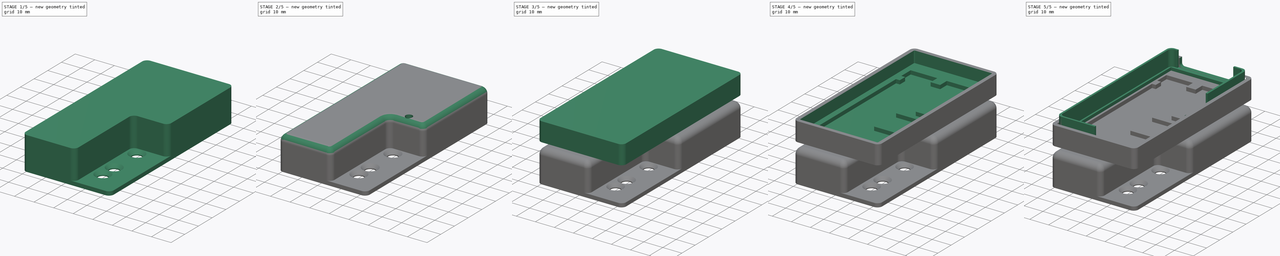
[diagram: build sequence overview — one tinted view per stage of 5, left to right]
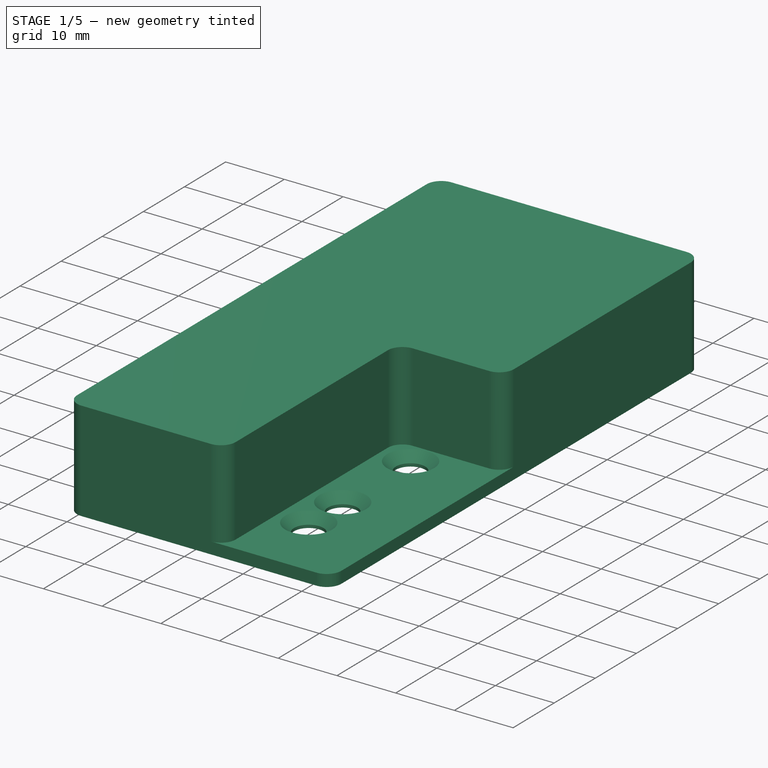
[diagram: stage 1 of 5 — iso view after this stage's code; geometry added in this stage tinted green]
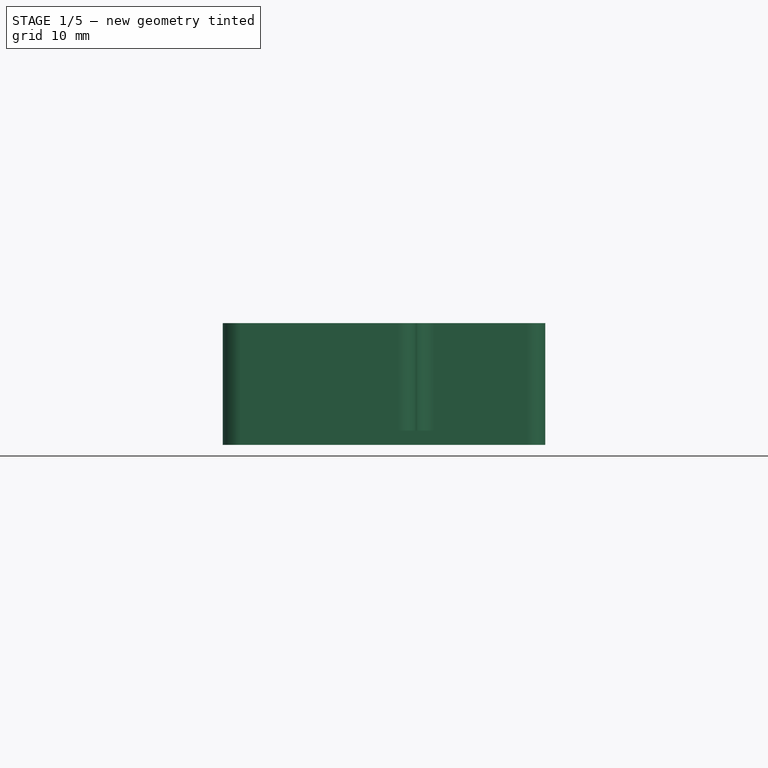
[diagram: stage 1 of 5 — front view after this stage's code; geometry added in this stage tinted green]
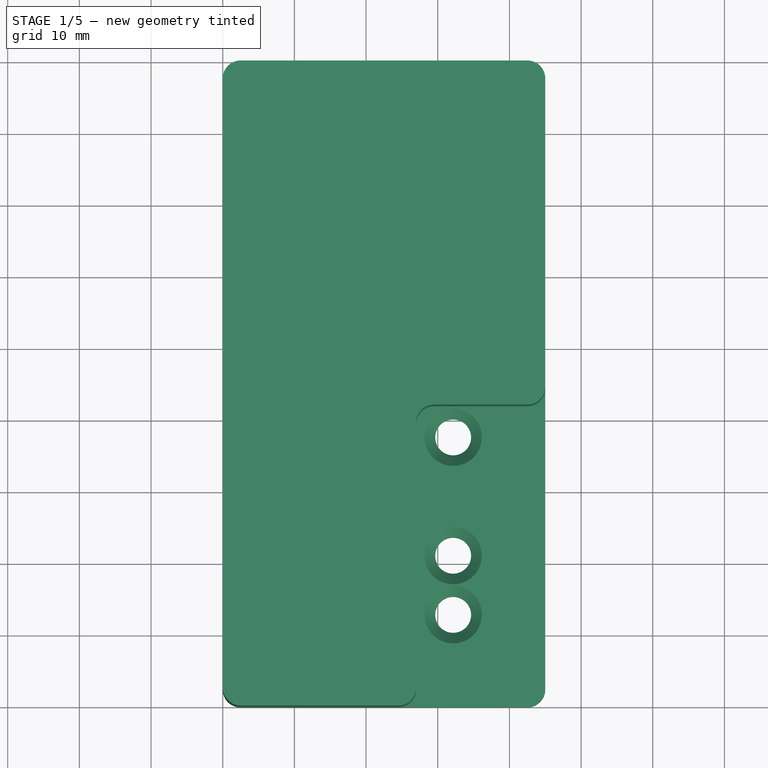
[diagram: stage 1 of 5 — top view after this stage's code; geometry added in this stage tinted green]
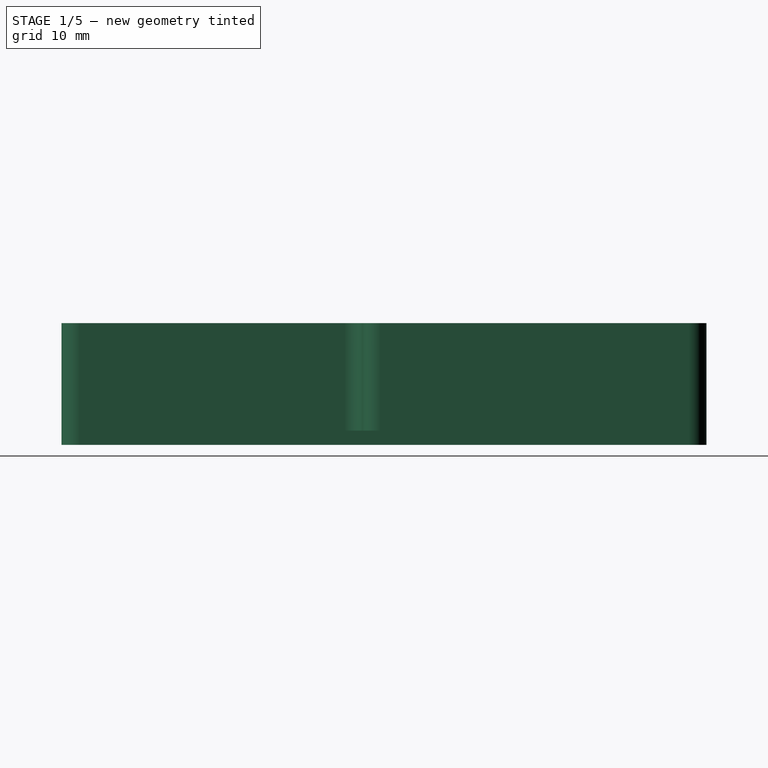
[diagram: stage 1 of 5 — right view after this stage's code; geometry added in this stage tinted green]
FCSTD DOCUMENT  (FreeCAD 0.21R33694 (Git))
Label: HM_AsksinPP_Dimmergehaeuse
License: All rights reserved
LicenseURL: http://en.wikipedia.org/wiki/All_rights_reserved
objects: Part::Feature×16, App::Part×16, Sketcher::SketchObject×12, PartDesign::Pocket×8, PartDesign::Pad×5, PartDesign::SubShapeBinder×2, PartDesign::Chamfer×2, PartDesign::Body×2, PartDesign::Thickness×1, PartDesign::Fillet×1, PartDesign::Hole×1
note: 68 computed .brp shape members not serialized (recipe doc carries the construction recipe); baked Part::Feature solids carry a one-line shape summary decoded from their .brp

FEATURE [PartDesign::SubShapeBinder] Binder  label="Binder_Bodenpad"
  BindCopyOnChange = 0
  BindMode = 2
  ClaimChildren = false
  Context = -> Body001 [Binder.]
  Fuse = false
  MakeFace = true
  OffsetFill = false
  OffsetIntersection = false
  OffsetJoinType = 0
  OffsetOpenResult = false
  PartialLoad = false
  Relative = true
  _Version = 2
FEATURE [PartDesign::Pad] Pad003  label="Pad_Deckel"
  Direction = (0,0,1)
  Length = 17
  Length2 = 10
  Profile = -> Binder
  Type = 0
FEATURE [Sketcher::SketchObject] Sketch006  label="Sk_Tieferlegung_Taster"
  ExternalGeometry = -> [Pad003]
  FullyConstrained = true
  MapMode = 5
  Support = -> [XY_Plane017]
  sketch-geometry (7):
    g0: ArcOfCircle CenterX=29.5 CenterY=39.5 CenterZ=0 NormalX=0 NormalY=0 NormalZ=1 AngleXU=0 Radius=2.5 StartAngle=1.5708 EndAngle=3.14159
    g1: LineSegment StartX=45 StartY=44.5 StartZ=0 EndX=45 EndY=0 EndZ=0
    g2: LineSegment StartX=45 StartY=0 StartZ=0 EndX=24.5 EndY=0 EndZ=0
    g3: LineSegment StartX=29.5 StartY=42 StartZ=0 EndX=42.5 EndY=42 EndZ=0
    g4: ArcOfCircle CenterX=42.5 CenterY=44.5 CenterZ=0 NormalX=0 NormalY=0 NormalZ=1 AngleXU=0 Radius=2.5 StartAngle=4.71239 EndAngle=6.28319
    g5: LineSegment StartX=27 StartY=39.5 StartZ=0 EndX=27 EndY=2.5 EndZ=0
    g6: ArcOfCircle CenterX=24.5 CenterY=2.5 CenterZ=0 NormalX=0 NormalY=0 NormalZ=1 AngleXU=0 Radius=2.5 StartAngle=4.71239 EndAngle=6.28319
  constraints (20):
    c: Horizontal(g2)
    c: Vertical(g1)
    c: Coincident(g1,g2)
    c: PointOnObject(g2,g-1)
    c: Diameter(g0) = 5
    c: Horizontal(g3)
    c: Diameter(g4) = 5
    c: Angle(g4) = 1.5708
    c: PointOnObject(g4,g-3)
    c: DistanceY(g-1,g3) = 42
    c: Coincident(g1,g4)
    c: Tangent(g4,g3) = -1.5708
    c: Vertical(g5)
    c: Angle(g6) = 1.5708
    c: Tangent(g6,g5) = 1.5708
    c: Diameter(g6) = 5
    c: Tangent(g3,g0) = 1.5708
    c: DistanceX(g-1,g5) = 27
    c: Coincident(g6,g2)
    c: Tangent(g5,g0) = -1.5708
FEATURE [PartDesign::Pocket] Pocket003  label="Pocket_Tieferlegung_Taster"
  BaseFeature = -> Pad003
  Direction = (0,0,-1)
  Length = 18
  Length2 = 5
  Profile = -> Sketch006
  ReferenceAxis = -> Sketch006 [N_Axis]
  Type = 0
FEATURE [Sketcher::SketchObject] Sketch007
  FullyConstrained = true
  MapMode = 5
  Support = -> [XY_Plane017]
  sketch-geometry (4):
    g0: Circle CenterX=32.15 CenterY=37.685 CenterZ=0 NormalX=0 NormalY=0 NormalZ=1 AngleXU=0 Radius=2.5
    g1: Circle CenterX=32.15 CenterY=21.175 CenterZ=0 NormalX=0 NormalY=0 NormalZ=1 AngleXU=0 Radius=2.5
    g2: Circle CenterX=32.15 CenterY=12.92 CenterZ=0 NormalX=0 NormalY=0 NormalZ=1 AngleXU=0 Radius=2.5
    g3: LineSegment StartX=32.15 StartY=45 StartZ=0 EndX=32.15 EndY=0 EndZ=0
  constraints (13):
    c: Diameter(g0) = 5
    c: Equal(g0,g1) = 5
    c: Equal(g0,g2) = 5
    c: PointOnObject(g3,g-1)
    c: Vertical(g3)
    c: DistanceY(g3,g3) = 45
    c: PointOnObject(g0,g3)
    c: PointOnObject(g1,g3)
    c: PointOnObject(g2,g3)
    c: DistanceX(g-1,g3) = 32.15
    c: DistanceY(g2,g1) = 8.255
    c: DistanceY(g2,g0) = 24.765
    c: DistanceY(g-1,g2) = 12.92
FEATURE [PartDesign::Pocket] Pocket004  label="Pocket_Tasterloecher"
  BaseFeature = -> Pocket003
  Direction = (0,0,-1)
  Length = 5
  Length2 = 5
  Profile = -> Sketch007
  ReferenceAxis = -> Sketch007 [N_Axis]
  Type = 1
FEATURE [PartDesign::Chamfer] Chamfer  label="Chamfer_TasterSenkungen"
  Angle = 45
  Base = -> Pocket004 [Edge39,Edge40,Edge41]
  BaseFeature = -> Pocket004
  ChamferType = 0
  FlipDirection = false
  Size = 1.5
  Size2 = 1
  SupportTransform = false
  UseAllEdges = false
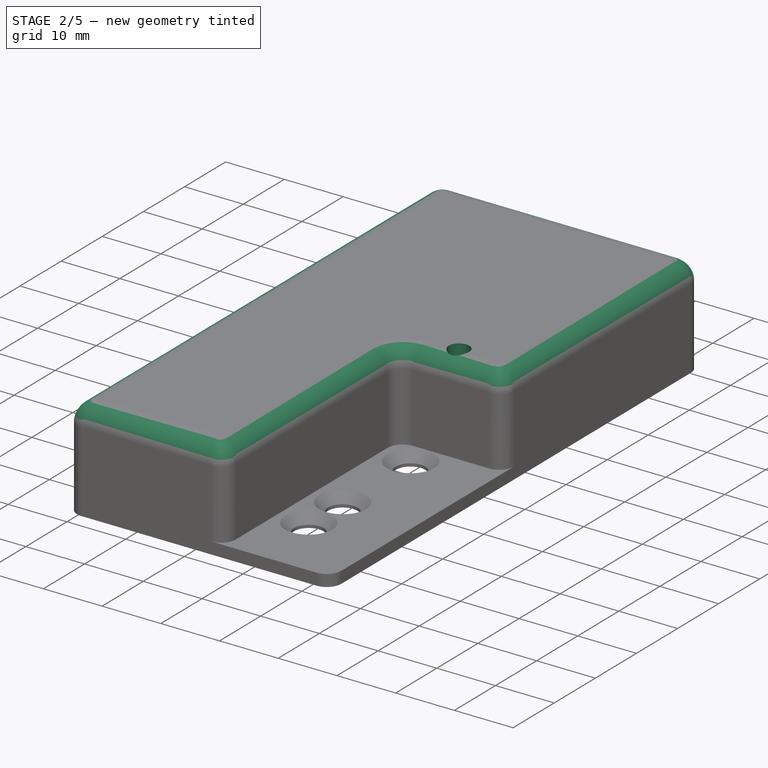
[diagram: stage 2 of 5 — iso view after this stage's code; geometry added in this stage tinted green]
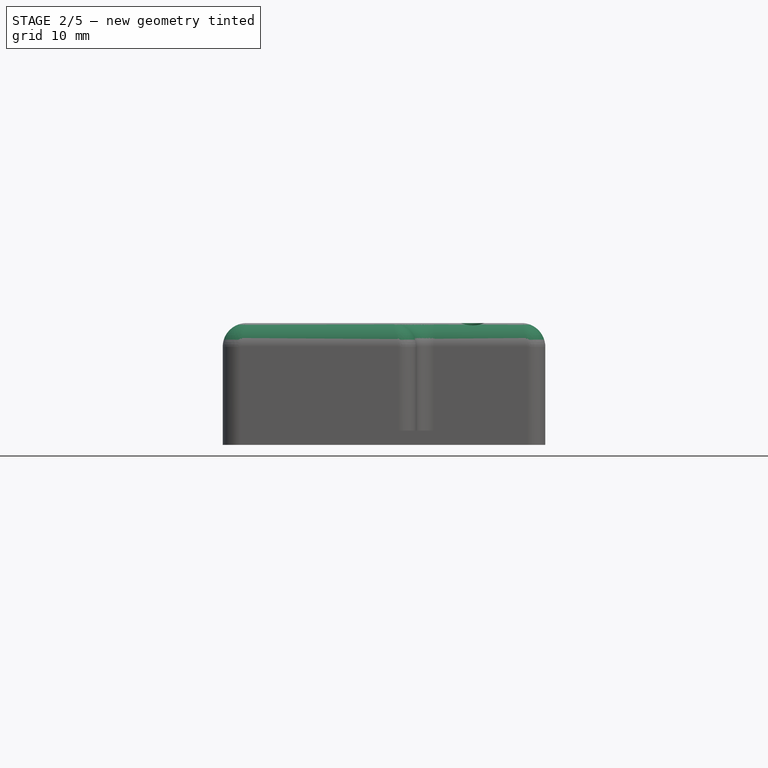
[diagram: stage 2 of 5 — front view after this stage's code; geometry added in this stage tinted green]
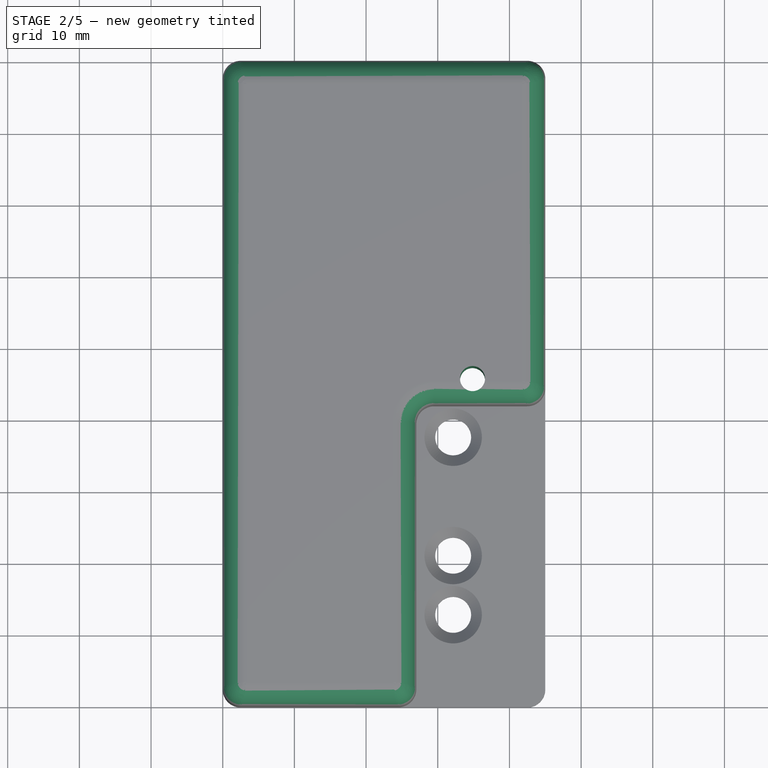
[diagram: stage 2 of 5 — top view after this stage's code; geometry added in this stage tinted green]
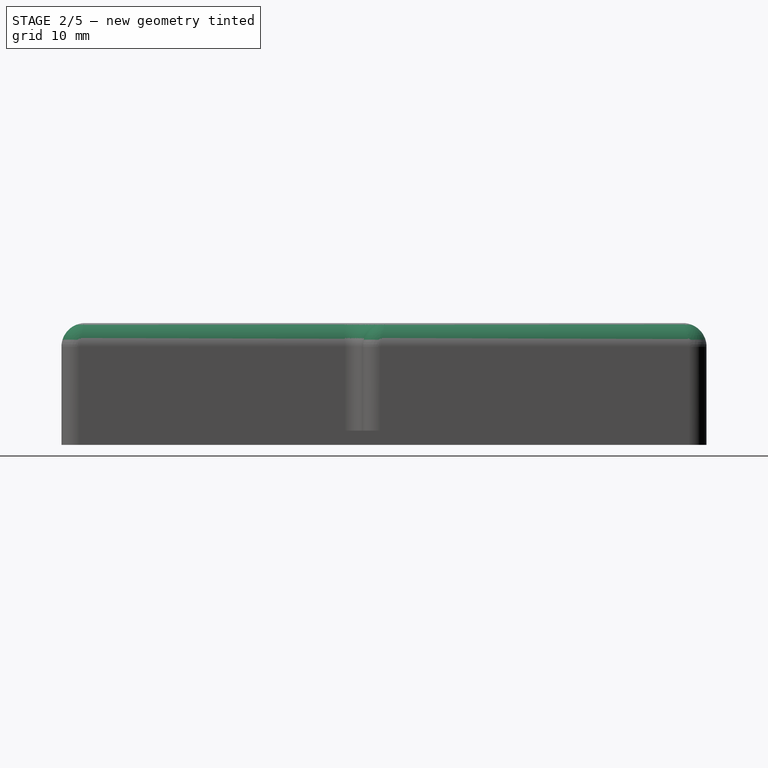
[diagram: stage 2 of 5 — right view after this stage's code; geometry added in this stage tinted green]
FEATURE [Sketcher::SketchObject] Sketch008  label="Sk_Hohlraum"
  AttachmentOffset = pos=(0,0,-5) rot=(0,0,1;0rad)
  FullyConstrained = true
  MapMode = 5
  Placement = pos=(0,0,-5) rot=(0,0,1;0rad)
  Support = -> [XY_Plane017]
  sketch-geometry (18):
    g0: LineSegment StartX=2 StartY=4.5 StartZ=0 EndX=2 EndY=85.5 EndZ=0
    g1: LineSegment StartX=4.5 StartY=88 StartZ=0 EndX=40.5 EndY=88 EndZ=0
    g2: LineSegment StartX=43 StartY=85.5 StartZ=0 EndX=43 EndY=55.8 EndZ=0
    g3: LineSegment StartX=31.1 StartY=43 StartZ=0 EndX=28.5 EndY=43 EndZ=0
    g4: LineSegment StartX=26 StartY=40.5 StartZ=0 EndX=26 EndY=4.5 EndZ=0
    g5: LineSegment StartX=23.5 StartY=2 StartZ=0 EndX=4.5 EndY=2 EndZ=0
    g6: ArcOfCircle CenterX=28.5 CenterY=40.5 CenterZ=0 NormalX=0 NormalY=0 NormalZ=1 AngleXU=0 Radius=2.5 StartAngle=1.5708 EndAngle=3.14159
    g7: GeomPoint X=26 Y=43 Z=0
    g8: ArcOfCircle CenterX=23.5 CenterY=4.5 CenterZ=0 NormalX=0 NormalY=0 NormalZ=1 AngleXU=0 Radius=2.5 StartAngle=4.71239 EndAngle=6.28319
    g9: GeomPoint X=26 Y=2 Z=0
    g10: ArcOfCircle CenterX=4.5 CenterY=4.5 CenterZ=0 NormalX=0 NormalY=0 NormalZ=1 AngleXU=0 Radius=2.5 StartAngle=3.14159 EndAngle=4.71239
    g11: GeomPoint X=2 Y=2 Z=0
    g12: ArcOfCircle CenterX=4.5 CenterY=85.5 CenterZ=0 NormalX=0 NormalY=0 NormalZ=1 AngleXU=0 Radius=2.5 StartAngle=1.5708 EndAngle=3.14159
    g13: GeomPoint X=2 Y=88 Z=0
    g14: ArcOfCircle CenterX=40.5 CenterY=85.5 CenterZ=0 NormalX=0 NormalY=0 NormalZ=1 AngleXU=0 Radius=2.5 StartAngle=-9e-16 EndAngle=1.5708
    g15: GeomPoint X=43 Y=88 Z=0
    g16: LineSegment StartX=43 StartY=55.8 StartZ=0 EndX=31.1 EndY=55.8 EndZ=0
    g17: LineSegment StartX=31.1 StartY=55.8 StartZ=0 EndX=31.1 EndY=43 EndZ=0
  constraints (44):
    c: Vertical(g0)
    c: Horizontal(g1)
    c: Vertical(g2)
    c: Horizontal(g3)
    c: Vertical(g4)
    c: Horizontal(g5)
    c: DistanceX(g-1,g11) = 2
    c: DistanceY(g-1,g11) = 2
    c: DistanceY(g11,g13) = 86
    c: DistanceX(g13,g15) = 41
    c: DistanceX(g11,g9) = 24
    c: DistanceY(g9,g7) = 41
    c: PointOnObject(g7,g3)
    c: PointOnObject(g7,g4)
    c: Tangent(g3,g6) = -1.5708
    c: Tangent(g4,g6) = -1.5708
    c: Diameter(g6) = 5
    c: PointOnObject(g9,g4)
    c: PointOnObject(g9,g5)
    c: Tangent(g4,g8) = 1.5708
    c: Tangent(g5,g8) = 1.5708
    c: Diameter(g8) = 5
    c: PointOnObject(g11,g0)
    c: PointOnObject(g11,g5)
    c: Tangent(g0,g10) = 1.5708
    c: Tangent(g5,g10) = 1.5708
    c: Diameter(g10) = 5
    c: PointOnObject(g13,g0)
    c: PointOnObject(g13,g1)
    c: Tangent(g0,g12) = 1.5708
    c: Tangent(g1,g12) = 1.5708
    c: PointOnObject(g15,g1)
    c: PointOnObject(g15,g2)
    c: Tangent(g1,g14) = 1.5708
    c: Tangent(g2,g14) = 1.5708
    c: Diameter(g12) = 5
    c: Diameter(g14) = 5
    c: Coincident(g2,g16)
    c: Horizontal(g16)
    c: Coincident(g16,g17)
    c: Vertical(g17)
    c: Coincident(g3,g17)
    c: DistanceX(g3,g3) = 2.6
    c: DistanceY(g17,g17) = 12.8
FEATURE [PartDesign::Pocket] Pocket005  label="Pocket_Hohlraum"
  BaseFeature = -> Chamfer
  Direction = (0,0,-1)
  Length = 5
  Length2 = 5
  Profile = -> Sketch008
  ReferenceAxis = -> Sketch008 [N_Axis]
  Type = 1
FEATURE [Sketcher::SketchObject] Sketch009
  FullyConstrained = true
  MapMode = 5
  Support = -> [XY_Plane017]
  sketch-geometry (1):
    g0: Circle CenterX=34.85 CenterY=45.61 CenterZ=0 NormalX=0 NormalY=0 NormalZ=1 AngleXU=0 Radius=1.75
  constraints (3):
    c: Diameter(g0) = 3.5
    c: DistanceX(g-1,g0) = 34.85
    c: DistanceY(g-1,g0) = 45.61
FEATURE [PartDesign::Fillet] Fillet  label="Fillet_DeckelOberseite"
  Base = -> Pocket005 [Face14]
  BaseFeature = -> Pocket005
  Radius = 3.3
  SupportTransform = false
  UseAllEdges = false
FEATURE [PartDesign::Pocket] Pocket006  label="Pocket_LED"
  BaseFeature = -> Fillet
  Direction = (0,0,-1)
  Length = 5
  Length2 = 5
  Profile = -> Sketch009
  ReferenceAxis = -> Sketch009 [N_Axis]
  Type = 1
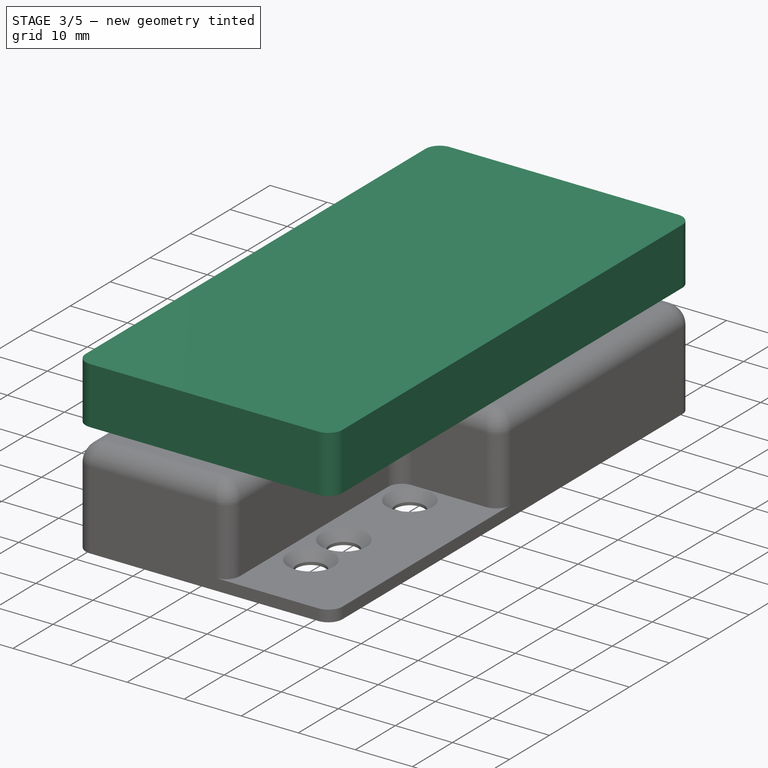
[diagram: stage 3 of 5 — iso view after this stage's code; geometry added in this stage tinted green]
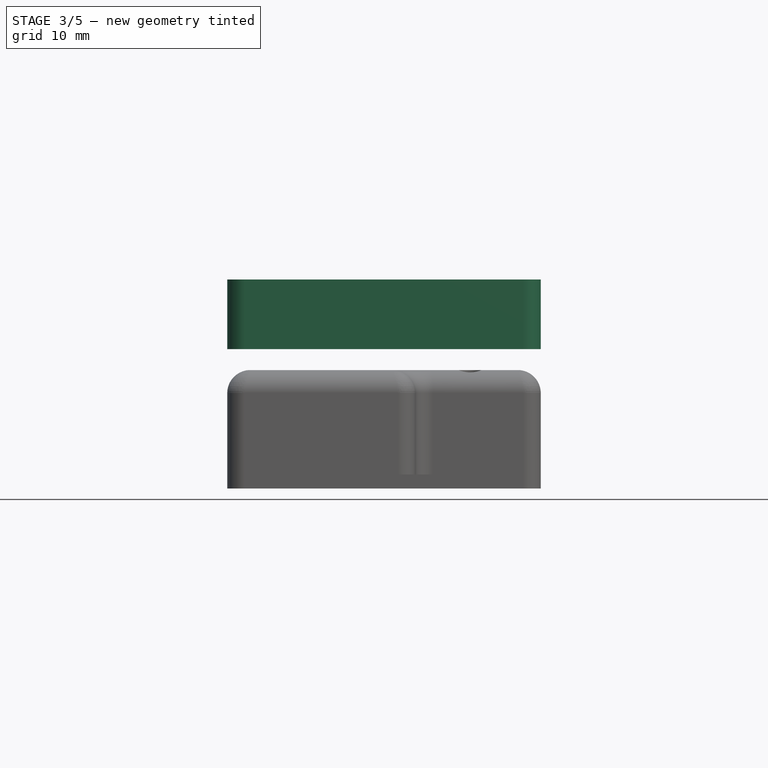
[diagram: stage 3 of 5 — front view after this stage's code; geometry added in this stage tinted green]
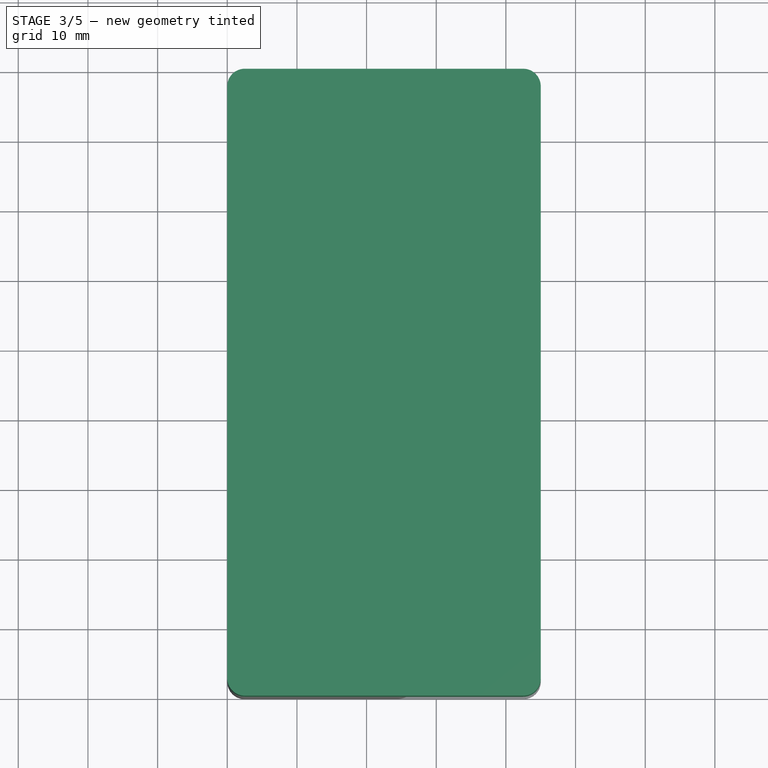
[diagram: stage 3 of 5 — top view after this stage's code; geometry added in this stage tinted green]
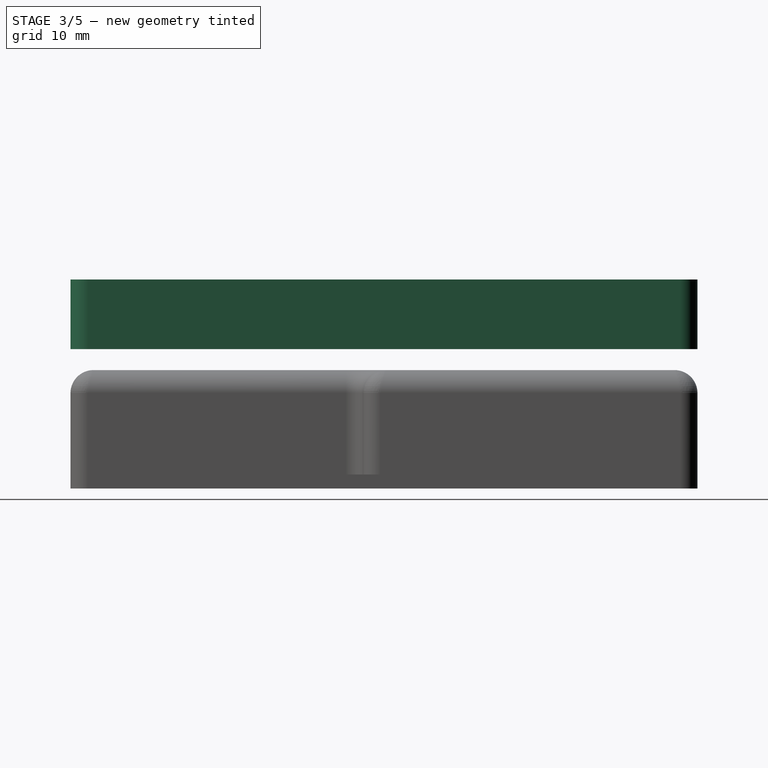
[diagram: stage 3 of 5 — right view after this stage's code; geometry added in this stage tinted green]
FEATURE [Part::Feature] Part__Feature  label="SOLID"
  shape: bbox 7.174 x 6 x 8.5 mm, 105 faces (baked)
FEATURE [App::Part] SW_PUSH_6mm_H5mm
  Group = -> [Part__Feature]
  Origin = -> Origin
  Placement = pos=(24.98,10.44,1.65) rot=(0,0,1;0rad)
FEATURE [Part::Feature] Part__Feature001  label="SOLID001"
  shape: bbox 4.6 x 3 x 8.9 mm, 22 faces (baked)
FEATURE [App::Part] C_Rect_L4_6mm_W3_0mm_P2_50mm_MKS02_FKP02  label="C_Rect_L4.6mm_W3.0mm_P2.50mm_MKS02_FKP02"
  Group = -> [Part__Feature001]
  Origin = -> Origin001
  Placement = pos=(18.145,58.01,1.65) rot=(0,0,1;1.5708rad)
FEATURE [Part::Feature] Part__Feature002  label="SOLID002"
  shape: bbox 6 x 4.9 x 1.75 mm, 156 faces (baked)
FEATURE [App::Part] SOIC_8_3_9x4_9mm_P1_27mm  label="SOIC-8_3.9x4.9mm_P1.27mm"
  Group = -> [Part__Feature002]
  Origin = -> Origin002
  Placement = pos=(27.835,54.755,1.65) rot=(0,0,1;0rad)
FEATURE [Part::Feature] Part__Feature003  label="COMPOUND"
  shape: bbox 10.56 x 10 x 18.25 mm, 233 faces (baked)
FEATURE [App::Part] _er_Terminal_Block  label="2er Terminal Block"
  Group = -> [Part__Feature003]
  Origin = -> Origin003
  Placement = pos=(23.305,72.615,1.65) rot=(0,0,1;0rad)
FEATURE [Part::Feature] Part__Feature004  label="SOLID003"
  shape: bbox 3.4 x 3.8 x 10.8 mm, 16 faces (baked)
FEATURE [App::Part] LED_D3_0mm  label="LED_D3.0mm"
  Group = -> [Part__Feature004]
  Origin = -> Origin004
  Placement = pos=(30.845,39.595,1.65) rot=(0,0,1;1.5708rad)
FEATURE [Part::Feature] Part__Feature005  label="SOLID004"
  shape: bbox 6.015 x 6.588 x 11.6 mm, 63 faces (baked)
FEATURE [App::Part] CP_Radial_Tantal_D6_0mm_P2_50mm  label="CP_Radial_Tantal_D6.0mm_P2.50mm"
  Group = -> [Part__Feature005]
  Origin = -> Origin005
  Placement = pos=(4.215,59.28,1.65) rot=(0,0,1;0rad)
FEATURE [Part::Feature] Part__Feature006  label="SOLID005"
  shape: bbox 7.174 x 6 x 8.5 mm, 105 faces (baked)
FEATURE [App::Part] SW_PUSH_6mm_H5mm001
  Group = -> [Part__Feature006]
  Origin = -> Origin006
  Placement = pos=(24.98,18.695,1.65) rot=(0,0,1;0rad)
FEATURE [Part::Feature] Part__Feature007  label="COMPOUND001"
  shape: bbox 10.56 x 10 x 18.25 mm, 233 faces (baked)
FEATURE [App::Part] _er_Terminal_Block001  label="2er Terminal Block001"
  Group = -> [Part__Feature007]
  Origin = -> Origin007
  Placement = pos=(6.795,72.615,1.65) rot=(0,0,1;0rad)
FEATURE [Part::Feature] Part__Feature008  label="SOLID006"
  shape: bbox 7.174 x 6 x 8.5 mm, 105 faces (baked)
FEATURE [App::Part] SW_PUSH_6mm_H5mm002
  Group = -> [Part__Feature008]
  Origin = -> Origin008
  Placement = pos=(24.98,35.205,1.65) rot=(0,0,1;0rad)
FEATURE [Part::Feature] Part__Feature009  label="SOLID007"
  shape: bbox 3 x 2 x 5.1 mm, 12 faces (baked)
FEATURE [App::Part] C_Disc_D3_0mm_W2_0mm_P2_50mm  label="C_Disc_D3.0mm_W2.0mm_P2.50mm"
  Group = -> [Part__Feature009]
  Origin = -> Origin009
  Placement = pos=(33.425,56.065,1.65) rot=(0,0,-1;1.5708rad)
FEATURE [Part::Feature] Part__Feature010  label="SOLID008"
  shape: bbox 4.83 x 3.745 x 9.8 mm, 19 faces (baked)
FEATURE [App::Part] TO_92_Inline  label="TO-92_Inline"
  Group = -> [Part__Feature010]
  Origin = -> Origin010
  Placement = pos=(12.43,58.01,1.65) rot=(0,0,1;1.5708rad)
FEATURE [Part::Feature] Part__Feature011  label="SOLID009"
  shape: bbox 4.292 x 2.706 x 12.6 mm, 17 faces (baked)
FEATURE [App::Part] R_Axial_DIN0207_L6_3mm_D2_5mm_P2_54mm_Vertical  label="R_Axial_DIN0207_L6.3mm_D2.5mm_P2.54mm_Vertical"
  Group = -> [Part__Feature011]
  Origin = -> Origin011
  Placement = pos=(25.13,40.23,1.65) rot=(0,0,1;1.5708rad)
FEATURE [Part::Feature] Part__Feature012  label="SOLID010"
  shape: bbox 10.25 x 4.455 x 28.53 mm, 48 faces (baked)
FEATURE [App::Part] TO_220_3_Vertical  label="TO-220-3_Vertical"
  Group = -> [Part__Feature012]
  Origin = -> Origin012
  Placement = pos=(30.21,61.82,1.65) rot=(0,0,1;3.14159rad)
FEATURE [Part::Feature] Part__Feature013  label="SOLID011"
  shape: bbox 9.25 x 6.5 x 3.2 mm, 154 faces (baked)
FEATURE [App::Part] Molex_530470610
  Group = -> [Part__Feature013]
  Origin = -> Origin013
  Placement = pos=(28.34,23.84,6.85) rot=(-1,0,0;1.5708rad)
FEATURE [Part::Feature] Part__Feature014  label="SOLID012"
  shape: bbox 3 x 2 x 5.1 mm, 12 faces (baked)
FEATURE [App::Part] C_Disc_D3_0mm_W2_0mm_P2_50mm001  label="C_Disc_D3.0mm_W2.0mm_P2.50mm001"
  Group = -> [Part__Feature014]
  Origin = -> Origin014
  Placement = pos=(22.59,56.065,1.65) rot=(0,0,-1;1.5708rad)
FEATURE [Part::Feature] Part__Feature015  label="Homematic_AsksinPP_PWM_Dimmer PCB"
  shape: bbox 37 x 80 x 1.6 mm, 87 faces (baked)
FEATURE [App::Part] Homematic_AsksinPP_PWM_Dimmer_1  label="Homematic_AsksinPP_PWM_Dimmer 1"
  Group = -> [SW_PUSH_6mm_H5mm,C_Rect_L4_6mm_W3_0mm_P2_50mm_MKS02_FKP02,SOIC_8_3_9x4_9mm_P1_27mm,_er_Terminal_Block,LED_D3_0mm,CP_Radial_Tantal_D6_0mm_P2_50mm,SW_PUSH_6mm_H5mm001,_er_Terminal_Block001,SW_PUSH_6mm_H5mm002,C_Disc_D3_0mm_W2_0mm_P2_50mm,TO_92_Inline,R_Axial_DIN0207_L6_3mm_D2_5mm_P2_54mm_Vertical,TO_220_3_Vertical,Molex_530470610,C_Disc_D3_0mm_W2_0mm_P2_50mm001,Part__Feature015]
  Origin = -> Origin015
  Placement = pos=(4,4.75,4) rot=(0,0,1;0rad)
FEATURE [Sketcher::SketchObject] Sketch  label="Sk_Bodenplatte"
  FullyConstrained = true
  MapMode = 5
  Support = -> [XY_Plane016]
  sketch-geometry (10):
    g0: ArcOfCircle CenterX=2.5 CenterY=2.5 CenterZ=0 NormalX=0 NormalY=0 NormalZ=1 AngleXU=0 Radius=2.5 StartAngle=3.14159 EndAngle=4.71239
    g1: LineSegment StartX=1.4504e-11 StartY=2.5 StartZ=0 EndX=1.4504e-11 EndY=87.5 EndZ=0
    g2: ArcOfCircle CenterX=2.5 CenterY=87.5 CenterZ=0 NormalX=0 NormalY=0 NormalZ=1 AngleXU=0 Radius=2.5 StartAngle=1.5708 EndAngle=3.14159
    g3: LineSegment StartX=2.5 StartY=90 StartZ=0 EndX=42.5 EndY=90 EndZ=0
    g4: ArcOfCircle CenterX=42.5 CenterY=87.5 CenterZ=0 NormalX=0 NormalY=0 NormalZ=1 AngleXU=0 Radius=2.5 StartAngle=7.5357e-12 EndAngle=1.5708
    g5: LineSegment StartX=45 StartY=87.5 StartZ=0 EndX=45 EndY=2.5 EndZ=0
    g6: ArcOfCircle CenterX=42.5 CenterY=2.5 CenterZ=0 NormalX=0 NormalY=0 NormalZ=1 AngleXU=0 Radius=2.5 StartAngle=4.71239 EndAngle=6.28319
    g7: LineSegment StartX=42.5 StartY=6.7e-15 StartZ=0 EndX=2.5 EndY=6.7e-15 EndZ=0
    g8: GeomPoint X=0 Y=0 Z=0
    g9: GeomPoint X=45 Y=90 Z=0
  constraints (23):
    c: Tangent(g0,g1) = 1.5708
    c: Tangent(g1,g2) = 1.5708
    c: Tangent(g2,g3) = 1.5708
    c: Tangent(g3,g4) = 1.5708
    c: Tangent(g4,g5) = 1.5708
    c: Tangent(g5,g6) = 1.5708
    c: Tangent(g6,g7) = 1.5708
    c: Tangent(g7,g0) = 1.5708
    c: Horizontal(g3)
    c: Horizontal(g7)
    c: Vertical(g1)
    c: Vertical(g5)
    c: Equal(g0,g2)
    c: Equal(g2,g4)
    c: Equal(g4,g6)
    c: PointOnObject(g8,g1)
    c: PointOnObject(g8,g7)
    c: PointOnObject(g9,g3)
    c: PointOnObject(g9,g5)
    c: Coincident(g8,g-1)
    c: Diameter(g2) = 5
    c: DistanceX(g1,g4) = 45
    c: DistanceY(g6,g3) = 90
FEATURE [PartDesign::Pad] Pad  label="Pad_Bodenplatte"
  Direction = (0,0,1)
  Length = 10
  Length2 = 10
  Profile = -> Sketch
  ReferenceAxis = -> Sketch [N_Axis]
  Type = 0
FEATURE [PartDesign::Body] Body  label="Boden"
  Group = -> [Sketch,Pad,Thickness,Sketch001,Pad001,Sketch003,Pocket,Sketch002,Pocket001,Sketch004,Pocket002,Sketch005,Pad002,Sketch010,Pad004]
  Origin = -> Origin016
  Tip = -> Pocket002
FEATURE [PartDesign::Hole] Hole  label="Hole_M3_Zylinderkopf"
  BaseFeature = -> Pocket006
  CustomThreadClearance = 0
  Depth = 208.06
  DepthType = 1
  Diameter = 3.2
  DrillForDepth = false
  DrillPoint = 1
  DrillPointAngle = 118
  HoleCutCountersinkAngle = 90
  HoleCutCustomValues = false
  HoleCutDepth = 7.2
  HoleCutDiameter = 5.6
  HoleCutType = 1
  ModelThread = false
  Profile = -> Binder001
  Tapered = false
  TaperedAngle = 90
  ThreadClass = 0
  ThreadDepth = 208.06
  ThreadDepthType = 0
  ThreadDirection = 0
  ThreadFit = 0
  ThreadSize = 0
  ThreadType = 0
  Threaded = false
  UseCustomThreadClearance = false
FEATURE [Sketcher::SketchObject] Sketch011
  AttachmentOffset = pos=(0,0,-19) rot=(0,0,1;0rad)
  FullyConstrained = true
  MapMode = 5
  Placement = pos=(0,0,-19) rot=(0,0,1;0rad)
  Support = -> [XY_Plane017]
  sketch-geometry (4):
    g0: LineSegment StartX=25 StartY=32.5 StartZ=0 EndX=39 EndY=32.5 EndZ=0
    g1: LineSegment StartX=39 StartY=32.5 StartZ=0 EndX=39 EndY=27.5 EndZ=0
    g2: LineSegment StartX=39 StartY=27.5 StartZ=0 EndX=25 EndY=27.5 EndZ=0
    g3: LineSegment StartX=25 StartY=27.5 StartZ=0 EndX=25 EndY=32.5 EndZ=0
  constraints (12):
    c: Coincident(g0,g1)
    c: Coincident(g1,g2)
    c: Coincident(g2,g3)
    c: Coincident(g3,g0)
    c: Horizontal(g0)
    c: Horizontal(g2)
    c: Vertical(g1)
    c: Vertical(g3)
    c: DistanceY(g1,g1) = 5
    c: DistanceX(g0,g0) = 14
    c: DistanceX(g-1,g2) = 25
    c: DistanceY(g-1,g2) = 27.5
FEATURE [PartDesign::Pocket] Pocket007  label="Pocket_ISP"
  BaseFeature = -> Hole
  Direction = (0,0,-1)
  Length = 5
  Length2 = 5
  Profile = -> Sketch011
  ReferenceAxis = -> Sketch011 [N_Axis]
  Type = 2
FEATURE [PartDesign::Chamfer] Chamfer001  label="Chamfer_LEDunten"
  Angle = 45
  Base = -> Pocket007 [Edge40]
  BaseFeature = -> Pocket007
  ChamferType = 1
  FlipDirection = false
  Size = 2
  Size2 = 1
  SupportTransform = false
  UseAllEdges = false
FEATURE [PartDesign::Body] Body001  label="Deckel"
  Group = -> [Binder,Pad003,Sketch006,Pocket003,Sketch007,Pocket004,Chamfer,Sketch008,Pocket005,Sketch009,Fillet,Pocket006,Binder001,Hole,Sketch011,Pocket007,Chamfer001]
  Origin = -> Origin017
  Placement = pos=(0,0,30) rot=(0,0,1;0rad)
  Tip = -> Chamfer001
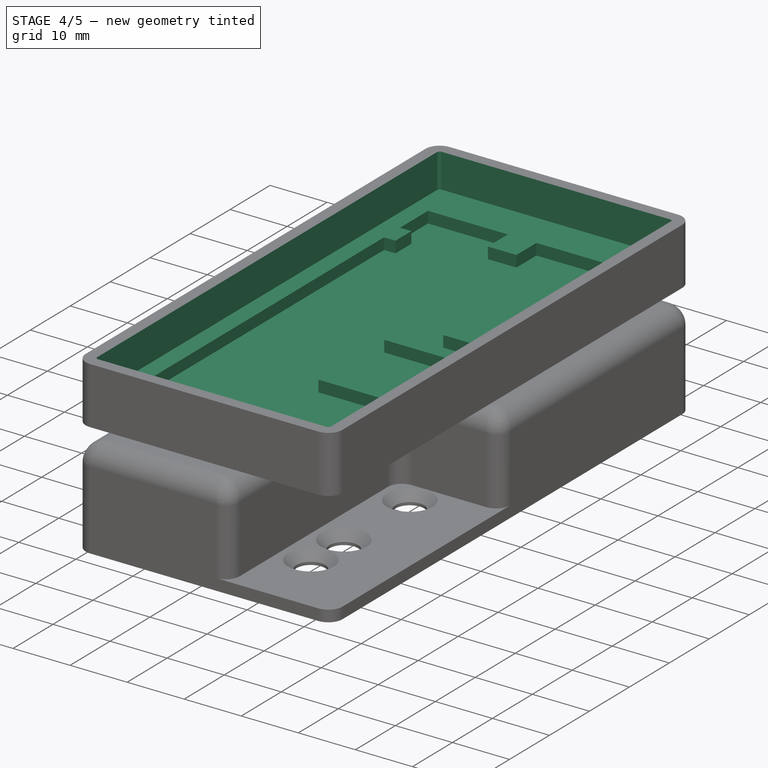
[diagram: stage 4 of 5 — iso view after this stage's code; geometry added in this stage tinted green]
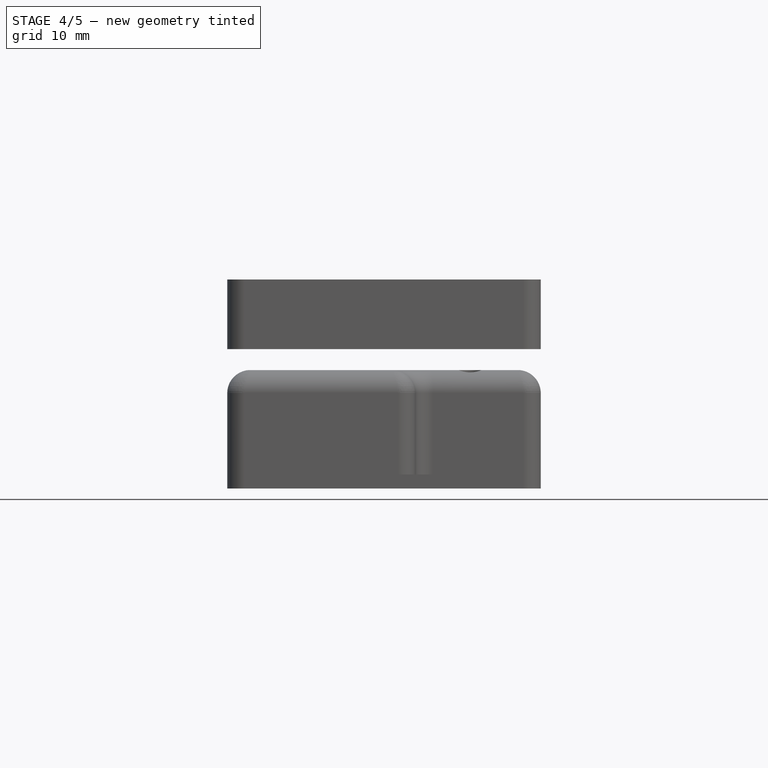
[diagram: stage 4 of 5 — front view after this stage's code; geometry added in this stage tinted green]
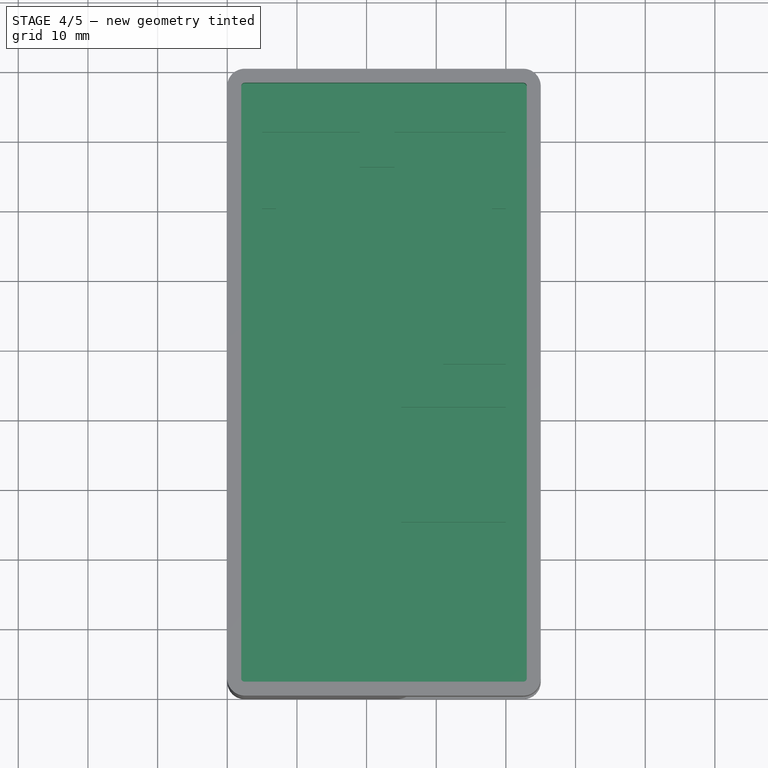
[diagram: stage 4 of 5 — top view after this stage's code; geometry added in this stage tinted green]
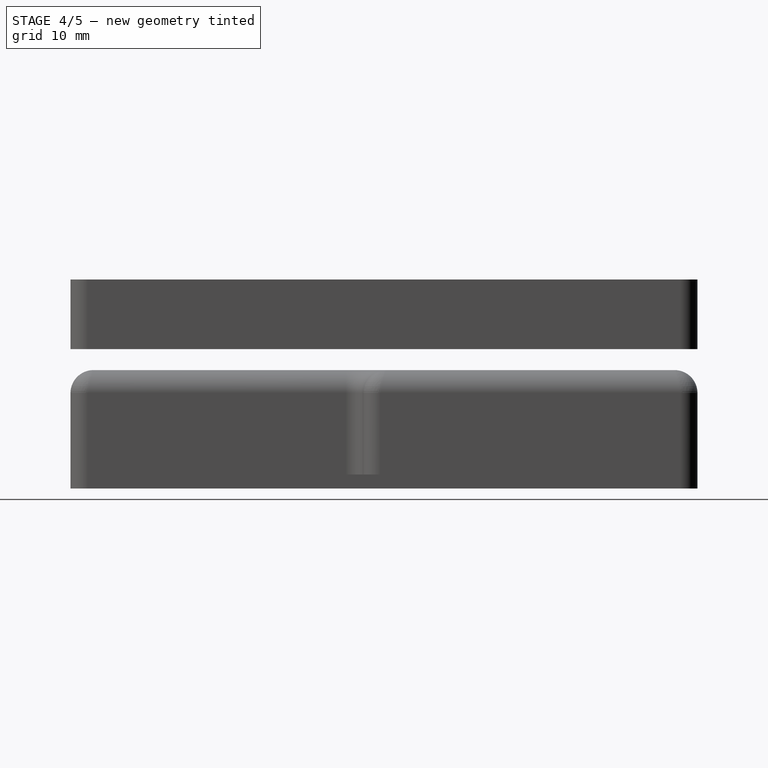
[diagram: stage 4 of 5 — right view after this stage's code; geometry added in this stage tinted green]
FEATURE [PartDesign::Thickness] Thickness  label="Aushöhlung_Thickness_Bodenplatte"
  Base = -> Pad [Face10]
  BaseFeature = -> Pad
  Intersection = false
  Join = 0
  Mode = 1
  Reversed = true
  SupportTransform = false
  Value = 2
FEATURE [Sketcher::SketchObject] Sketch001  label="Sk_PCB_Auflage"
  AttachmentOffset = pos=(0,0,2) rot=(0,0,1;0rad)
  FullyConstrained = true
  MapMode = 5
  Placement = pos=(0,0,2) rot=(0,0,1;0rad)
  Support = -> [XY_Plane016]
  sketch-geometry (36):
    g0: LineSegment StartX=2 StartY=2 StartZ=0 EndX=2 EndY=88 EndZ=0
    g1: LineSegment StartX=2 StartY=88 StartZ=0 EndX=43 EndY=88 EndZ=0
    g2: LineSegment StartX=43 StartY=88 StartZ=0 EndX=43 EndY=2 EndZ=0
    g3: LineSegment StartX=43 StartY=2 StartZ=0 EndX=2 EndY=2 EndZ=0
    g4: LineSegment StartX=5 StartY=6 StartZ=0 EndX=5 EndY=70 EndZ=0
    g5: LineSegment StartX=5 StartY=70 StartZ=0 EndX=7 EndY=70 EndZ=0
    g6: LineSegment StartX=7 StartY=70 StartZ=0 EndX=7 EndY=74 EndZ=0
    g7: LineSegment StartX=7 StartY=74 StartZ=0 EndX=5 EndY=74 EndZ=0
    g8: LineSegment StartX=5 StartY=74 StartZ=0 EndX=5 EndY=81 EndZ=0
    g9: LineSegment StartX=5 StartY=81 StartZ=0 EndX=19 EndY=81 EndZ=0
    g10: LineSegment StartX=19 StartY=81 StartZ=0 EndX=19 EndY=76 EndZ=0
    g11: LineSegment StartX=19 StartY=76 StartZ=0 EndX=24 EndY=76 EndZ=0
    g12: LineSegment StartX=24 StartY=76 StartZ=0 EndX=24 EndY=81 EndZ=0
    g13: LineSegment StartX=24 StartY=81 StartZ=0 EndX=40 EndY=81 EndZ=0
    g14: LineSegment StartX=40 StartY=43.5 StartZ=0 EndX=25 EndY=43.5 EndZ=0
    g15: LineSegment StartX=25 StartY=43.5 StartZ=0 EndX=25 EndY=41.5 EndZ=0
    g16: LineSegment StartX=25 StartY=41.5 StartZ=0 EndX=40 EndY=41.5 EndZ=0
    g17: LineSegment StartX=40 StartY=41.5 StartZ=0 EndX=40 EndY=28 EndZ=0
    g18: LineSegment StartX=40 StartY=28 StartZ=0 EndX=25 EndY=28 EndZ=0
    g19: LineSegment StartX=25 StartY=28 StartZ=0 EndX=25 EndY=25 EndZ=0
    g20: LineSegment StartX=25 StartY=25 StartZ=0 EndX=40 EndY=25 EndZ=0
    g21: LineSegment StartX=40 StartY=25 StartZ=0 EndX=40 EndY=6 EndZ=0
    g22: LineSegment StartX=40 StartY=6 StartZ=0 EndX=5 EndY=6 EndZ=0
    g23: LineSegment StartX=40 StartY=81 StartZ=0 EndX=40 EndY=74 EndZ=0
    g24: LineSegment StartX=40 StartY=74 StartZ=0 EndX=38 EndY=74 EndZ=0
    g25: LineSegment StartX=38 StartY=74 StartZ=0 EndX=38 EndY=70 EndZ=0
    g26: LineSegment StartX=38 StartY=70 StartZ=0 EndX=40 EndY=70 EndZ=0
    g27: LineSegment StartX=5 StartY=81 StartZ=0 EndX=40 EndY=81 EndZ=0
    g28: LineSegment StartX=40 StartY=81 StartZ=0 EndX=40 EndY=6 EndZ=0
    g29: LineSegment StartX=40 StartY=6 StartZ=0 EndX=5 EndY=6 EndZ=0
    g30: LineSegment StartX=5 StartY=6 StartZ=0 EndX=5 EndY=81 EndZ=0
    g31: LineSegment StartX=40 StartY=47.7 StartZ=0 EndX=40 EndY=43.5 EndZ=0
    g32: LineSegment StartX=40 StartY=70 StartZ=0 EndX=40 EndY=56.7 EndZ=0
    g33: LineSegment StartX=40 StartY=56.7 StartZ=0 EndX=31 EndY=56.7 EndZ=0
    g34: LineSegment StartX=31 StartY=56.7 StartZ=0 EndX=31 EndY=47.7 EndZ=0
    g35: LineSegment StartX=31 StartY=47.7 StartZ=0 EndX=40 EndY=47.7 EndZ=0
  constraints (104):
    c: Vertical(g0)
    c: Coincident(g0,g1)
    c: Horizontal(g1)
    c: Coincident(g1,g2)
    c: Vertical(g2)
    c: Coincident(g2,g3)
    c: Coincident(g3,g0)
    c: Horizontal(g3)
    c: DistanceX(g1,g1) = 41
    c: DistanceY(g2,g2) = 86
    c: DistanceY(g-1,g0) = 2
    c: DistanceX(g-1,g0) = 2
    c: Vertical(g4)
    c: Coincident(g4,g5)
    c: Horizontal(g5)
    c: Coincident(g5,g6)
    c: Coincident(g6,g7)
    c: Horizontal(g7)
    c: Coincident(g7,g8)
    c: Coincident(g8,g9)
    c: Vertical(g10)
    c: Coincident(g10,g11)
    c: Coincident(g11,g12)
    c: Coincident(g12,g13)
    c: Horizontal(g13)
    c: Coincident(g13,g23)
    c: Coincident(g31,g14)
    c: Horizontal(g14)
    c: Coincident(g14,g15)
    c: Coincident(g15,g16)
    c: Horizontal(g16)
    c: Coincident(g16,g17)
    c: Vertical(g17)
    c: Coincident(g17,g18)
    c: Horizontal(g18)
    c: Coincident(g18,g19)
    c: Coincident(g19,g20)
    c: Coincident(g20,g21)
    c: Vertical(g21)
    c: Coincident(g21,g22)
    c: Coincident(g22,g4)
    c: Horizontal(g22)
    c: Coincident(g9,g10)
    c: Horizontal(g11)
    c: Vertical(g15)
    c: Vertical(g12)
    c: Vertical(g6)
    c: Vertical(g8)
    c: Coincident(g23,g24)
    c: Vertical(g23)
    c: Coincident(g26,g32)
    c: Coincident(g24,g25)
    c: Coincident(g25,g26)
    c: Vertical(g25)
    c: Horizontal(g24)
    c: Horizontal(g26)
    c: Horizontal(g9)
    c: Vertical(g19)
    c: Coincident(g27,g28)
    c: Coincident(g28,g29)
    c: Coincident(g29,g30)
    c: Coincident(g30,g27)
    c: Horizontal(g27)
    c: Vertical(g28)
    c: Vertical(g30)
    c: Coincident(g27,g8)
    c: Coincident(g28,g21)
    c: DistanceX(g0,g29) = 3
    c: DistanceY(g0,g29) = 4
    c: DistanceX(g29,g29) = 35
    c: Coincident(g4,g29)
    c: PointOnObject(g17,g28)
    c: PointOnObject(g14,g28)
    c: Coincident(g13,g27)
    c: DistanceY(g30,g30) = 75
    c: DistanceX(g5,g5) = 2
    c: DistanceX(g26,g26) = 2
    c: DistanceX(g9,g9) = 14
    c: DistanceX(g13,g13) = 16
    c: DistanceY(g10,g10) = 5
    c: DistanceY(g25,g25) = 4
    c: DistanceY(g6,g6) = 4
    c: DistanceY(g8,g8) = 7
    c: DistanceY(g23,g23) = 7
    c: DistanceX(g14,g14) = 15
    c: DistanceY(g15,g15) = 2
    c: DistanceY(g19,g19) = 3
    c: DistanceX(g18,g18) = 15
    c: Horizontal(g20)
    c: DistanceY(g21,g21) = 19
    c: DistanceY(g17,g17) = 13.5
    c: Coincident(g35,g31)
    c: Vertical(g31)
    c: Coincident(g32,g33)
    c: Vertical(g32)
    c: Coincident(g33,g34)
    c: Coincident(g34,g35)
    c: Vertical(g34)
    c: Horizontal(g33)
    c: Horizontal(g35)
    c: PointOnObject(g32,g28)
    c: DistanceY(g34,g34) = 9
    c: DistanceY(g31,g31) = 4.2
    c: DistanceX(g33,g33) = 9
FEATURE [PartDesign::Pad] Pad001  label="Pad_PCB_Auflage"
  BaseFeature = -> Thickness
  Direction = (0,0,1)
  Length = 2
  Length2 = 10
  Profile = -> Sketch001
  ReferenceAxis = -> Sketch001 [N_Axis]
  Type = 0
FEATURE [Sketcher::SketchObject] Sketch002  label="Sk_Bohrung_M3"
  AttachmentOffset = pos=(0,0,2) rot=(0,0,1;0rad)
  FullyConstrained = true
  MapMode = 5
  Placement = pos=(0,0,2) rot=(0,0,1;0rad)
  Support = -> [XY_Plane016]
  sketch-geometry (1):
    g0: Circle CenterX=37 CenterY=51.75 CenterZ=0 NormalX=0 NormalY=0 NormalZ=1 AngleXU=0 Radius=1.6
  constraints (3):
    c: Diameter(g0) = 3.2
    c: DistanceX(g-1,g0) = 37
    c: DistanceY(g-1,g0) = 51.75
FEATURE [Sketcher::SketchObject] Sketch003  label="Sk_Mutter_M3"
  FullyConstrained = true
  MapMode = 5
  Support = -> [XY_Plane016]
  sketch-geometry (7):
    g0: LineSegment StartX=39.8 StartY=50.1334 StartZ=0 EndX=39.8 EndY=53.3666 EndZ=0
    g1: LineSegment StartX=39.8 StartY=53.3666 StartZ=0 EndX=37 EndY=54.9832 EndZ=0
    g2: LineSegment StartX=37 StartY=54.9832 StartZ=0 EndX=34.2 EndY=53.3666 EndZ=0
    g3: LineSegment StartX=34.2 StartY=53.3666 StartZ=0 EndX=34.2 EndY=50.1334 EndZ=0
    g4: LineSegment StartX=34.2 StartY=50.1334 StartZ=0 EndX=37 EndY=48.5168 EndZ=0
    g5: LineSegment StartX=37 StartY=48.5168 StartZ=0 EndX=39.8 EndY=50.1334 EndZ=0
    g6: Circle CenterX=37 CenterY=51.75 CenterZ=0 NormalX=0 NormalY=0 NormalZ=1 AngleXU=0 Radius=3.23316
  constraints (17):
    c: Coincident(g0,g1)
    c: Coincident(g1,g2)
    c: Coincident(g2,g3)
    c: Coincident(g3,g4)
    c: Coincident(g4,g5)
    c: Coincident(g5,g0)
    c: Equal(g0, g1-g5) x5
    c: PointOnObject(g0,g6)
    c: PointOnObject(g1,g6)
    c: PointOnObject(g2,g6)
    c: PointOnObject(g3,g6)
    c: PointOnObject(g4,g6)
    c: PointOnObject(g5,g6)
    c: Vertical(g3)
    c: DistanceX(g2,g0) = 5.6
    c: DistanceX(g-1,g6) = 37
    c: DistanceY(g-1,g6) = 51.75
FEATURE [PartDesign::Pocket] Pocket  label="Pocket_Mutter_M3"
  BaseFeature = -> Pad001
  Direction = (0,0,-1)
  Length = 2.7
  Length2 = 5
  Profile = -> Sketch003
  ReferenceAxis = -> Sketch003 [N_Axis]
  Reversed = true
  Type = 0
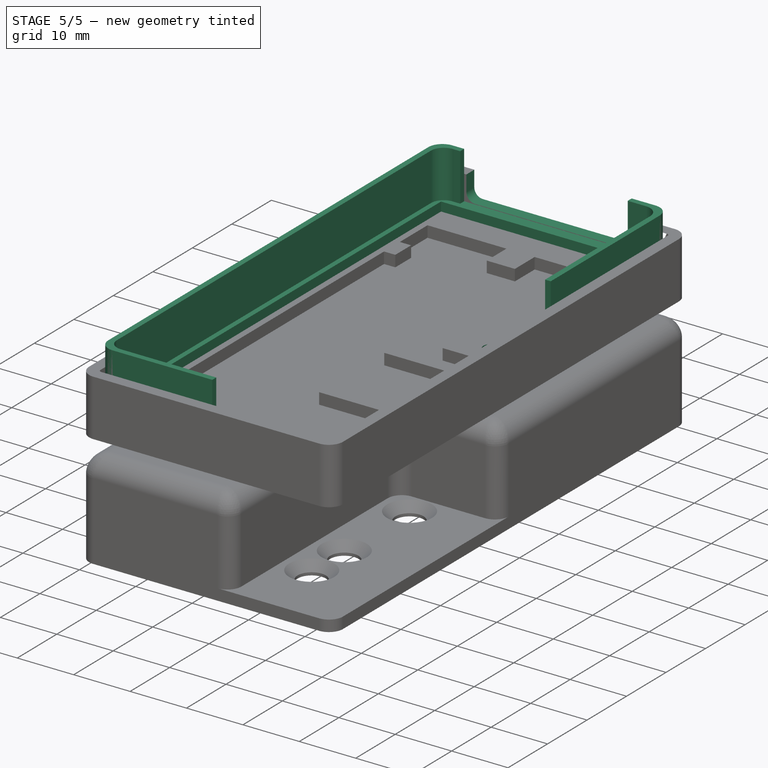
[diagram: stage 5 of 5 — iso view after this stage's code; geometry added in this stage tinted green]
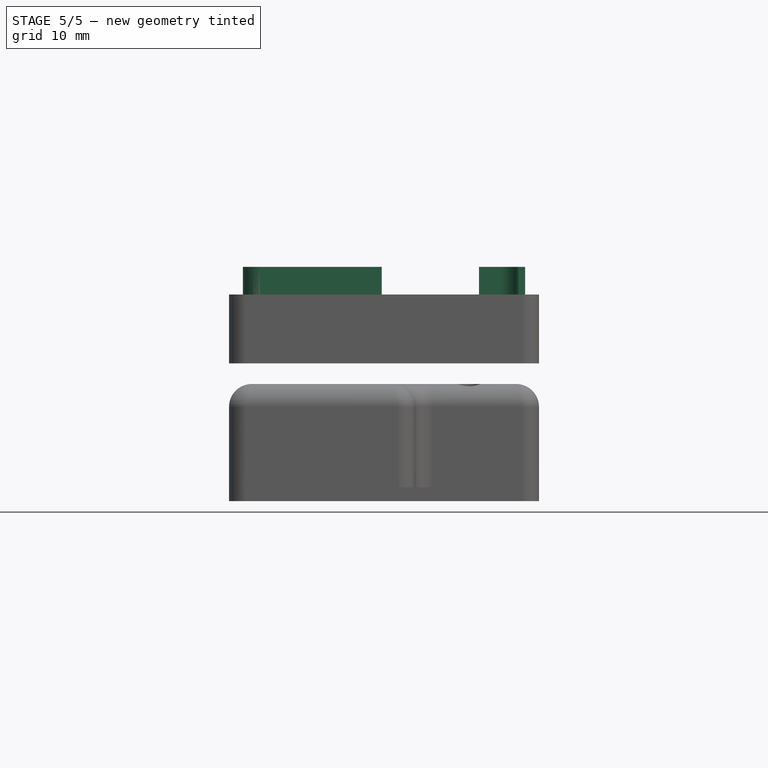
[diagram: stage 5 of 5 — front view after this stage's code; geometry added in this stage tinted green]
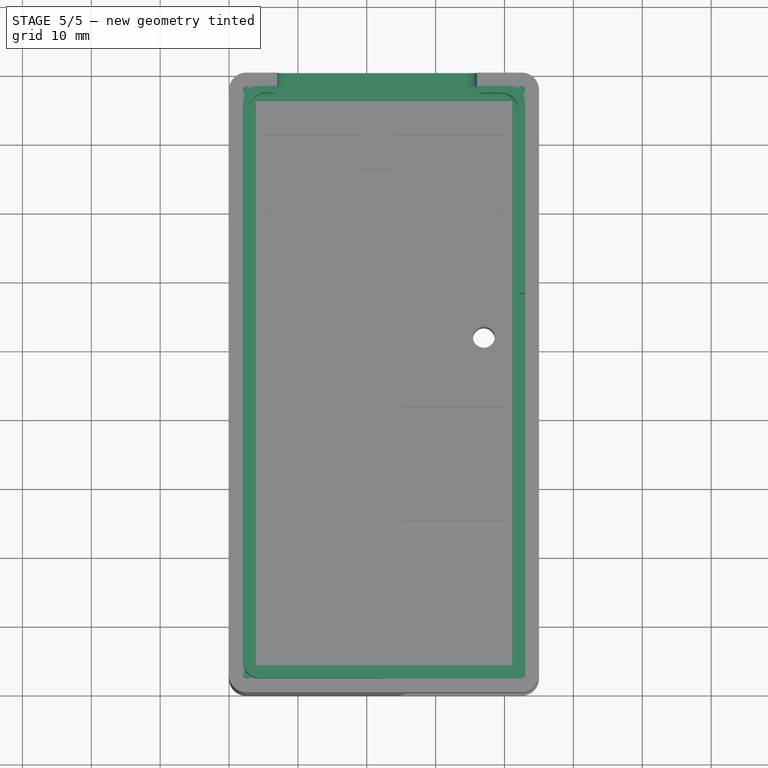
[diagram: stage 5 of 5 — top view after this stage's code; geometry added in this stage tinted green]
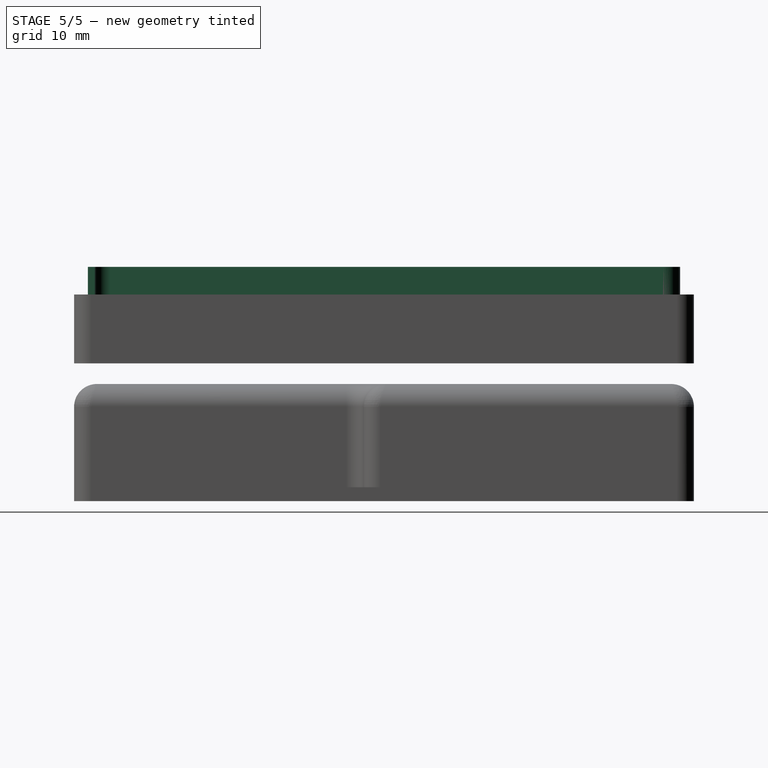
[diagram: stage 5 of 5 — right view after this stage's code; geometry added in this stage tinted green]
FEATURE [PartDesign::Pocket] Pocket001  label="Pocket_Bohrung_M3"
  BaseFeature = -> Pocket
  Direction = (0,0,-1)
  Length = 5
  Length2 = 5
  Profile = -> Sketch002
  ReferenceAxis = -> Sketch002 [N_Axis]
  Reversed = true
  Type = 1
FEATURE [Sketcher::SketchObject] Sketch004  label="Sk_Aussparung_Leitung"
  AttachmentOffset = pos=(0,0,-92) rot=(0,0,1;0rad)
  FullyConstrained = true
  MapMode = 5
  Placement = pos=(0,92,2.04e-14) rot=(1,0,0;1.5708rad)
  Support = -> [XZ_Plane016]
  sketch-geometry (7):
    g0: LineSegment StartX=36 StartY=11.7 StartZ=0 EndX=36 EndY=7.2 EndZ=0
    g1: ArcOfCircle CenterX=34.5 CenterY=7.2 CenterZ=0 NormalX=0 NormalY=0 NormalZ=1 AngleXU=0 Radius=1.5 StartAngle=4.71239 EndAngle=6.28319
    g2: LineSegment StartX=34.5 StartY=5.7 StartZ=0 EndX=8.5 EndY=5.7 EndZ=0
    g3: ArcOfCircle CenterX=8.5 CenterY=7.2 CenterZ=0 NormalX=0 NormalY=0 NormalZ=1 AngleXU=0 Radius=1.5 StartAngle=3.14159 EndAngle=4.71239
    g4: LineSegment StartX=7 StartY=7.2 StartZ=0 EndX=7 EndY=11.7 EndZ=0
    g5: LineSegment StartX=7 StartY=11.7 StartZ=0 EndX=36 EndY=11.7 EndZ=0
    g6: GeomPoint X=7 Y=5.7 Z=0
  constraints (18):
    c: Tangent(g0,g1) = 1.5708
    c: Tangent(g1,g2) = 1.5708
    c: Tangent(g2,g3) = 1.5708
    c: Tangent(g3,g4) = 1.5708
    c: Horizontal(g2)
    c: Horizontal(g5)
    c: Vertical(g0)
    c: Vertical(g4)
    c: Equal(g1,g3)
    c: PointOnObject(g6,g2)
    c: PointOnObject(g6,g4)
    c: DistanceY(g-1,g2) = 5.7
    c: Coincident(g4,g5)
    c: Coincident(g0,g5)
    c: Diameter(g1) = 3
    c: DistanceY(g1,g0) = 6
    c: DistanceX(g5,g5) = 29
    c: DistanceX(g-1,g4) = 7
FEATURE [PartDesign::Pocket] Pocket002  label="Pocket_Aussparung_Leitung"
  BaseFeature = -> Pocket001
  Direction = (0,1,2e-16)
  Length = 10
  Length2 = 5
  Profile = -> Sketch004
  ReferenceAxis = -> Sketch004 [N_Axis]
  Reversed = true
  Type = 0
FEATURE [Sketcher::SketchObject] Sketch005  label="Sk_Randeinfassung_PCB"
  FullyConstrained = true
  MapMode = 5
  Placement = pos=(0,0,4) rot=(0,0,1;0rad)
  Support = -> [Pocket002]
  sketch-geometry (8):
    g0: LineSegment StartX=1.6 StartY=88.5 StartZ=0 EndX=43.6 EndY=88.5 EndZ=0
    g1: LineSegment StartX=43.6 StartY=88.5 StartZ=0 EndX=43.6 EndY=1.5 EndZ=0
    g2: LineSegment StartX=43.6 StartY=1.5 StartZ=0 EndX=1.6 EndY=1.5 EndZ=0
    g3: LineSegment StartX=1.6 StartY=1.5 StartZ=0 EndX=1.6 EndY=88.5 EndZ=0
    g4: LineSegment StartX=3.9 StartY=86 StartZ=0 EndX=41.1 EndY=86 EndZ=0
    g5: LineSegment StartX=41.1 StartY=86 StartZ=0 EndX=41.1 EndY=4 EndZ=0
    g6: LineSegment StartX=41.1 StartY=4 StartZ=0 EndX=3.9 EndY=4 EndZ=0
    g7: LineSegment StartX=3.9 StartY=4 StartZ=0 EndX=3.9 EndY=86 EndZ=0
  constraints (24):
    c: Coincident(g0,g1)
    c: Coincident(g1,g2)
    c: Coincident(g2,g3)
    c: Coincident(g3,g0)
    c: Horizontal(g0)
    c: Horizontal(g2)
    c: Vertical(g1)
    c: Vertical(g3)
    c: Coincident(g4,g5)
    c: Coincident(g5,g6)
    c: Coincident(g6,g7)
    c: Coincident(g7,g4)
    c: Horizontal(g4)
    c: Horizontal(g6)
    c: Vertical(g5)
    c: Vertical(g7)
    c: DistanceX(g-1,g2) = 1.6
    c: DistanceX(g-1,g6) = 3.9
    c: DistanceY(g-1,g6) = 4
    c: DistanceX(g6,g6) = 37.2
    c: DistanceY(g7,g7) = 82
    c: DistanceY(g3,g3) = 87
    c: DistanceY(g-1,g2) = 1.5
    c: DistanceX(g2,g2) = 42
FEATURE [PartDesign::Pad] Pad002  label="Pad_Randeinfassung_PCB"
  BaseFeature = -> Pocket002
  Direction = (0,0,1)
  Length = 1.6
  Length2 = 10
  Profile = -> Sketch005
  ReferenceAxis = -> Sketch005 [N_Axis]
  Type = 0
FEATURE [PartDesign::SubShapeBinder] Binder001
  BindCopyOnChange = 0
  BindMode = 2
  ClaimChildren = false
  Context = -> Body001 [Binder001.]
  Fuse = false
  MakeFace = true
  OffsetFill = false
  OffsetIntersection = false
  OffsetJoinType = 0
  OffsetOpenResult = false
  PartialLoad = false
  Placement = pos=(0,0,30) rot=(0,0,1;0rad)
  Relative = true
  _Version = 2
FEATURE [Sketcher::SketchObject] Sketch010  label="Sk_Randerhöhung_fuer_Deckel"
  AttachmentOffset = pos=(0,0,4) rot=(0,0,1;0rad)
  FullyConstrained = false
  MapMode = 5
  Placement = pos=(0,0,4) rot=(0,0,1;0rad)
  Support = -> [XY_Plane016]
  sketch-geometry (26):
    g0: LineSegment StartX=3 StartY=84.7537 StartZ=0 EndX=3 EndY=5.25 EndZ=0
    g1: LineSegment StartX=2 StartY=4.5 StartZ=0 EndX=2 EndY=85.4971 EndZ=0
    g2: LineSegment StartX=4.5 StartY=2 StartZ=0 EndX=22.1705 EndY=2 EndZ=0
    g3: LineSegment StartX=22.1705 StartY=2 StartZ=0 EndX=22.1705 EndY=3 EndZ=0
    g4: LineSegment StartX=22.1705 StartY=3 StartZ=0 EndX=5.25 EndY=3 EndZ=0
    g5: LineSegment StartX=43 StartY=85.5 StartZ=0 EndX=43 EndY=57.9293 EndZ=0
    g6: LineSegment StartX=43 StartY=57.9293 StartZ=0 EndX=42 EndY=57.9293 EndZ=0
    g7: LineSegment StartX=42 StartY=57.9293 StartZ=0 EndX=42 EndY=84.5 EndZ=0
    g8: ArcOfCircle CenterX=4.5 CenterY=4.5 CenterZ=0 NormalX=0 NormalY=0 NormalZ=1 AngleXU=0 Radius=2.5 StartAngle=3.14159 EndAngle=4.71239
    g9: GeomPoint X=2 Y=2 Z=0
    g10: ArcOfCircle CenterX=5.25 CenterY=5.25 CenterZ=0 NormalX=0 NormalY=0 NormalZ=1 AngleXU=0 Radius=2.25 StartAngle=3.14159 EndAngle=4.71239
    g11: GeomPoint X=3 Y=3 Z=0
    g12: ArcOfCircle CenterX=4.5 CenterY=85.4971 CenterZ=0 NormalX=0 NormalY=0 NormalZ=1 AngleXU=0 Radius=2.5 StartAngle=1.5708 EndAngle=3.14159
    g13: GeomPoint X=2 Y=88 Z=0
    g14: ArcOfCircle CenterX=5.25 CenterY=84.7537 CenterZ=0 NormalX=0 NormalY=0 NormalZ=1 AngleXU=0 Radius=2.25 StartAngle=1.49424 EndAngle=3.14159
    g15: GeomPoint X=3 Y=87 Z=0
    g16: ArcOfCircle CenterX=40.5 CenterY=85.5 CenterZ=0 NormalX=0 NormalY=0 NormalZ=1 AngleXU=0 Radius=2.5 StartAngle=-9e-16 EndAngle=1.57234
    g17: GeomPoint X=43 Y=87.9293 Z=0
    g18: ArcOfCircle CenterX=39.5 CenterY=84.5 CenterZ=0 NormalX=0 NormalY=0 NormalZ=1 AngleXU=0 Radius=2.5 StartAngle=2.2e-15 EndAngle=1.5708
    g19: GeomPoint X=42 Y=87 Z=0
    g20: LineSegment StartX=4.5 StartY=87.9971 StartZ=0 EndX=6.6 EndY=87.9971 EndZ=0
    g21: LineSegment StartX=6.6 StartY=87.9971 StartZ=0 EndX=6.6 EndY=86.9971 EndZ=0
    g22: LineSegment StartX=6.6 StartY=86.9971 StartZ=0 EndX=5.42209 EndY=86.9971 EndZ=0
    g23: LineSegment StartX=40.4961 StartY=88 StartZ=0 EndX=36.3 EndY=87.9935 EndZ=0
    g24: LineSegment StartX=36.3 StartY=87.9935 StartZ=0 EndX=36.3 EndY=86.9935 EndZ=0
    g25: LineSegment StartX=36.3 StartY=86.9935 StartZ=0 EndX=39.5 EndY=87 EndZ=0
  constraints (57):
    c: Vertical(g0)
    c: Vertical(g1)
    c: DistanceX(g-1,g9) = 2
    c: DistanceX(g9,g11) = 1
    c: Horizontal(g2)
    c: Coincident(g2,g3)
    c: Vertical(g3)
    c: Coincident(g3,g4)
    c: Horizontal(g4)
    c: DistanceY(g9,g11) = 1
    c: Vertical(g5)
    c: Coincident(g5,g6)
    c: Coincident(g6,g7)
    c: Vertical(g7)
    c: DistanceY(g15,g13) = 1
    c: DistanceX(g19,g17) = 1
    c: Horizontal(g6)
    c: PointOnObject(g9,g2)
    c: PointOnObject(g9,g1)
    c: Tangent(g2,g8) = -1.5708
    c: Tangent(g1,g8) = 1.5708
    c: DistanceY(g-1,g1) = 4.5
    c: Diameter(g8) = 5
    c: PointOnObject(g11,g0)
    c: PointOnObject(g11,g4)
    c: Tangent(g0,g10) = -1.5708
    c: Tangent(g4,g10) = 1.5708
    c: Diameter(g10) = 4.5
    c: PointOnObject(g13,g1)
    c: Tangent(g1,g12) = 1.5708
    c: PointOnObject(g15,g0)
    c: Tangent(g0,g14) = -1.5708
    c: PointOnObject(g17,g5)
    c: Tangent(g5,g16) = 1.5708
    c: PointOnObject(g19,g7)
    c: Tangent(g7,g18) = -1.5708
    c: Diameter(g18) = 5
    c: Diameter(g16) = 5
    c: Diameter(g14) = 4.5
    c: Diameter(g12) = 5
    c: DistanceX(g1,g5) = 41
    c: Tangent(g12,g20) = 1.5708
    c: Coincident(g20,g21)
    c: Coincident(g21,g22)
    c: Coincident(g22,g14)
    c: Horizontal(g22)
    c: Tangent(g16,g23) = -1.5708
    c: Coincident(g23,g24)
    c: Coincident(g24,g25)
    c: Coincident(g25,g18)
    c: Vertical(g24)
    c: Vertical(g21)
    c: DistanceY(g14,g12) = 1
    c: DistanceX(g13,g20) = 4.6
    c: DistanceY(g24,g24) = 1
    c: DistanceX(g23,g17) = 6.7
    c: DistanceY(g5,g17) = 30
FEATURE [PartDesign::Pad] Pad004  label="Pad_Randerhöhung_fuer_Deckel"
  BaseFeature = -> Pad002
  Direction = (0,0,1)
  Length = 10
  Length2 = 10
  Profile = -> Sketch010
  ReferenceAxis = -> Sketch010 [N_Axis]
  Type = 0
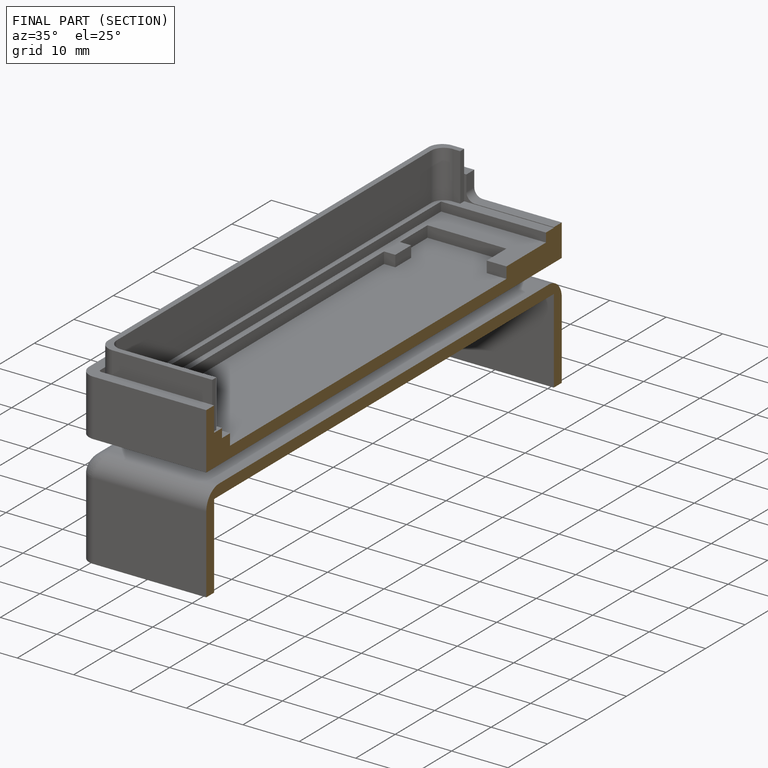
[diagram: finished part — half-section view (interior)]
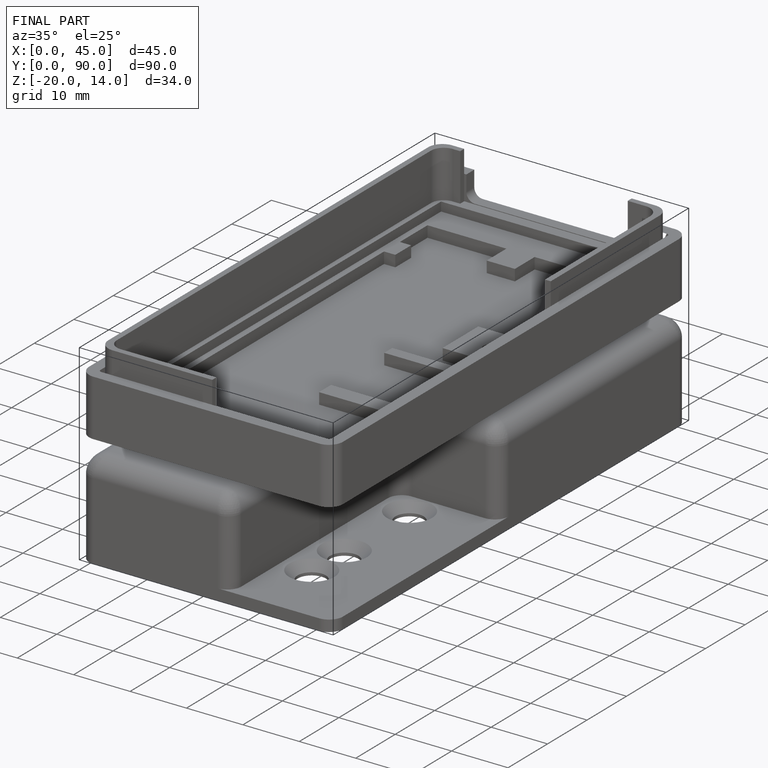
[diagram: finished part — iso view with bounding-box wireframe]
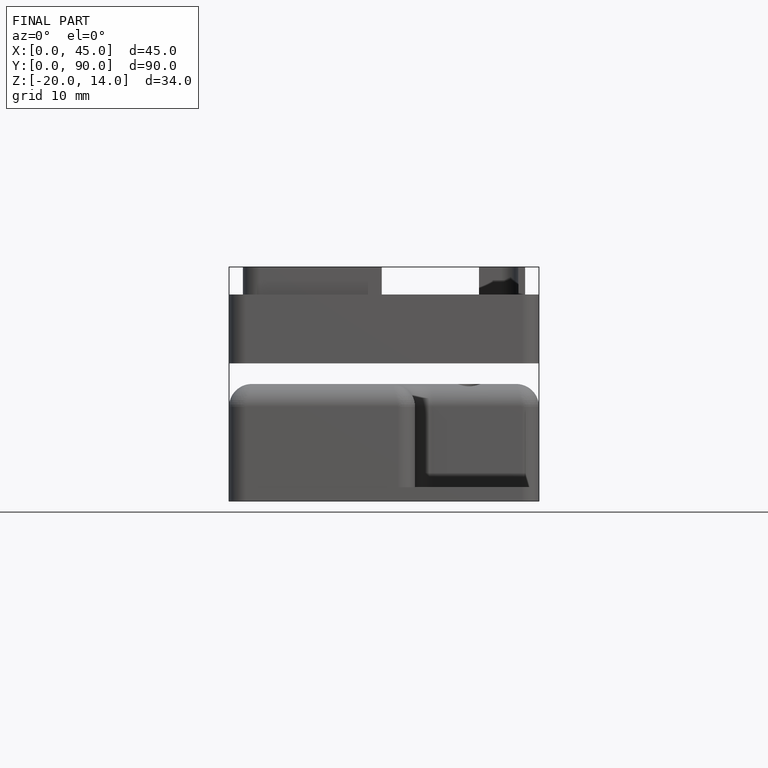
[diagram: finished part — front view with bounding-box wireframe]
